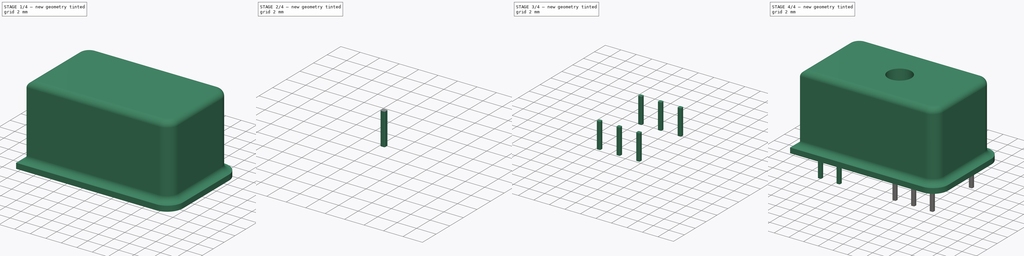
[diagram: build sequence overview — one tinted view per stage of 4, left to right]
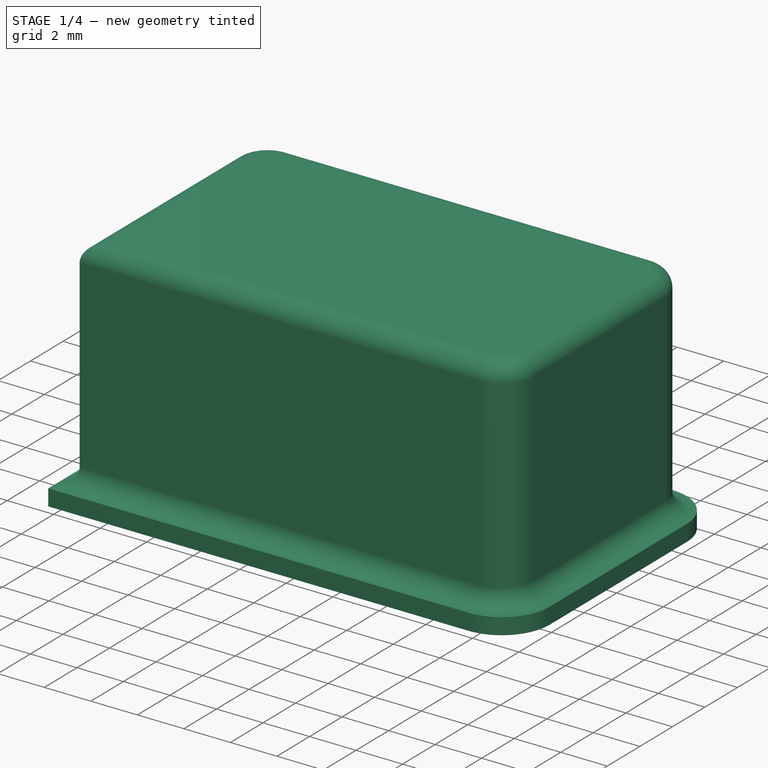
[diagram: stage 1 of 4 — iso view after this stage's code; geometry added in this stage tinted green]
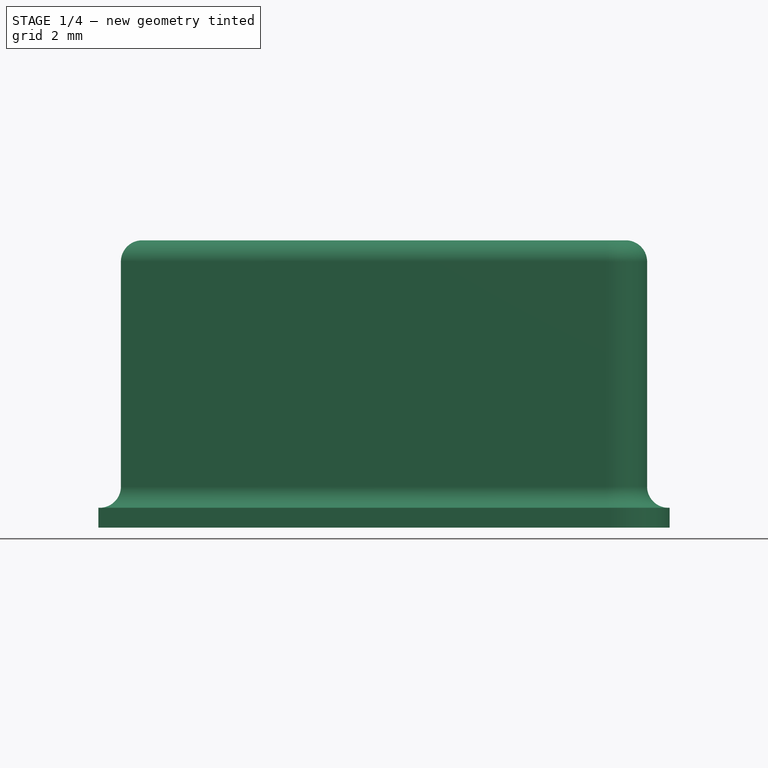
[diagram: stage 1 of 4 — front view after this stage's code; geometry added in this stage tinted green]
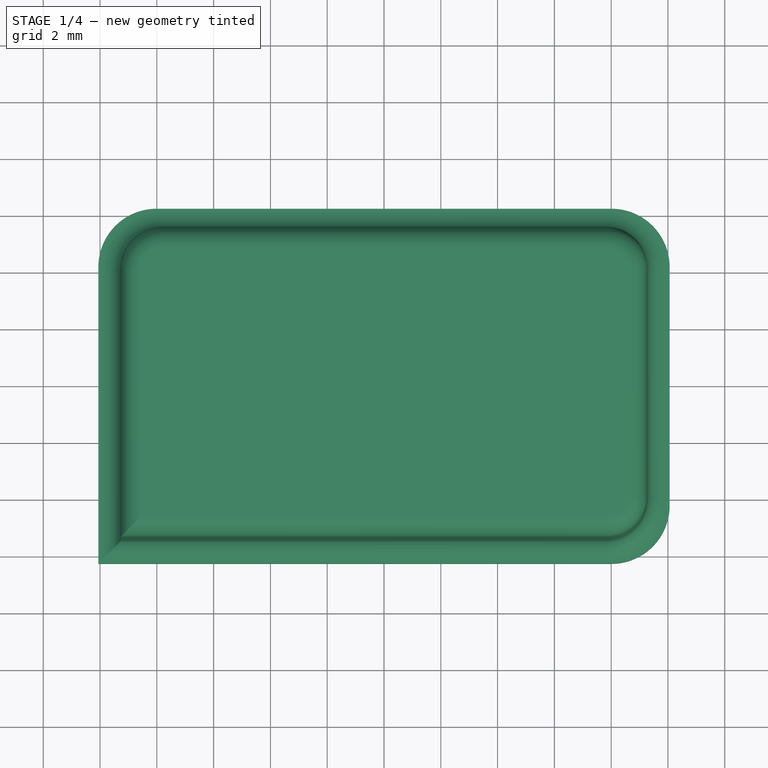
[diagram: stage 1 of 4 — top view after this stage's code; geometry added in this stage tinted green]
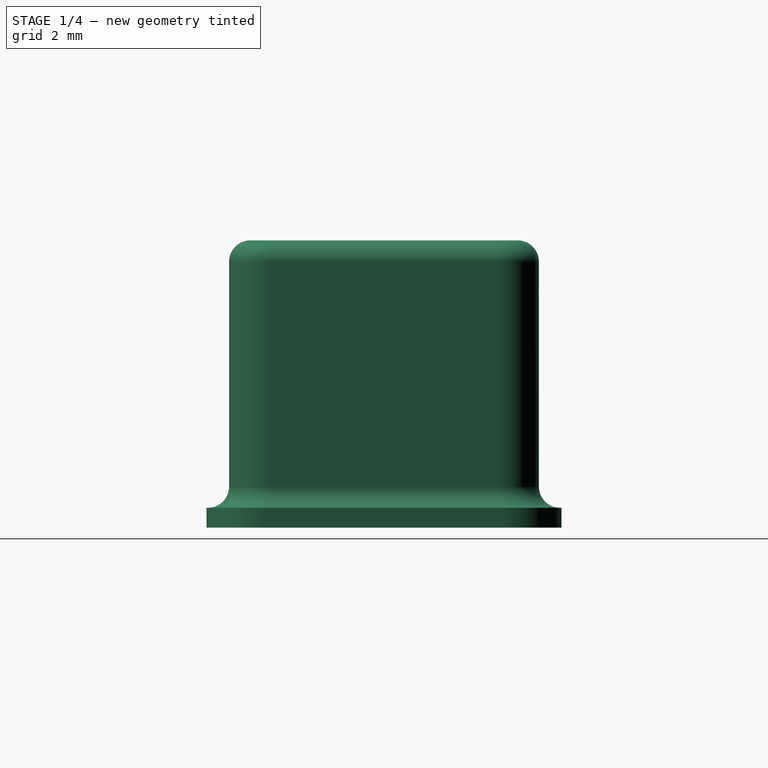
[diagram: stage 1 of 4 — right view after this stage's code; geometry added in this stage tinted green]
FCSTD DOCUMENT  (FreeCAD 0.20R29603 (Git))
Label: C12666MA
License: All rights reserved
LicenseURL: http://en.wikipedia.org/wiki/All_rights_reserved
objects: Part::FeaturePython×5, Sketcher::SketchObject×4, PartDesign::Pad×3, Part::MultiFuse×3, PartDesign::Body×2, PartDesign::Fillet×1, PartDesign::Pocket×1, PartDesign::ShapeBinder×1
note: 25 computed .brp shape members not serialized (recipe doc carries the construction recipe); baked Part::Feature solids carry a one-line shape summary decoded from their .brp

FEATURE [Sketcher::SketchObject] Sketch
  FullyConstrained = false
  MapMode = 5
  Support = -> [XY_Plane]
  sketch-geometry (9):
    g0: LineSegment StartX=-10.06 StartY=-6.25 StartZ=0 EndX=8.00679 EndY=-6.25 EndZ=0
    g1: LineSegment StartX=10.06 StartY=-4.19679 StartZ=0 EndX=10.06 EndY=4.19679 EndZ=0
    g2: LineSegment StartX=8.00679 StartY=6.25 StartZ=0 EndX=-8.00679 EndY=6.25 EndZ=0
    g3: LineSegment StartX=-10.06 StartY=4.19679 StartZ=0 EndX=-10.06 EndY=-6.25 EndZ=0
    g4: ArcOfCircle CenterX=-8.00679 CenterY=4.19679 CenterZ=0 NormalX=0 NormalY=0 NormalZ=1 AngleXU=0 Radius=2.05321 StartAngle=1.5708 EndAngle=3.14159
    g5: ArcOfCircle CenterX=8.00679 CenterY=4.19679 CenterZ=0 NormalX=0 NormalY=0 NormalZ=1 AngleXU=0 Radius=2.05321 StartAngle=2e-16 EndAngle=1.5708
    g6: ArcOfCircle CenterX=8.00679 CenterY=-4.19679 CenterZ=0 NormalX=0 NormalY=0 NormalZ=1 AngleXU=0 Radius=2.05321 StartAngle=4.71239 EndAngle=6.28319
    g7: GeomPoint X=-8.00679 Y=-6.25 Z=0
    g8: GeomPoint X=-10.06 Y=-4.19679 Z=0
  constraints (19):
    c: Coincident(g3,g0)
    c: Horizontal(g0)
    c: Vertical(g3)
    c: Tangent(g2,g4) = -1.5708
    c: Tangent(g3,g4) = -1.5708
    c: Tangent(g1,g5) = -1.5708
    c: Tangent(g2,g5) = -1.5708
    c: Tangent(g0,g6) = -1.5708
    c: Tangent(g1,g6) = -1.5708
    c: Equal(g4,g5)
    c: Equal(g5,g6)
    c: Horizontal(g2)
    c: Vertical(g1)
    c: PointOnObject(g7,g0)
    c: PointOnObject(g8,g3)
    c: DistanceX(g8,g1) = 20.12
    c: DistanceY(g7,g2) = 12.5
    c: Symmetric(g1,g8,g-2)
    c: Symmetric(g2,g7,g-1)
FEATURE [PartDesign::Pad] Pad
  Direction = (0,0,1)
  Length = 0.7
  Length2 = 10
  Profile = -> Sketch
  ReferenceAxis = -> Sketch [N_Axis]
  Type = 0
FEATURE [Sketcher::SketchObject] Sketch001
  FullyConstrained = false
  MapMode = 5
  Placement = pos=(0,0,0.7) rot=(0,0,1;0rad)
  Support = -> [Pad]
  sketch-geometry (9):
    g0: LineSegment StartX=-9.265 StartY=-5.455 StartZ=0 EndX=7.83023 EndY=-5.455 EndZ=0
    g1: LineSegment StartX=9.265 StartY=-4.02023 StartZ=0 EndX=9.265 EndY=4.02023 EndZ=0
    g2: LineSegment StartX=7.83023 StartY=5.455 StartZ=0 EndX=-7.83023 EndY=5.455 EndZ=0
    g3: LineSegment StartX=-9.265 StartY=4.02023 StartZ=0 EndX=-9.265 EndY=-5.455 EndZ=0
    g4: ArcOfCircle CenterX=-7.83023 CenterY=4.02023 CenterZ=0 NormalX=0 NormalY=0 NormalZ=1 AngleXU=0 Radius=1.43477 StartAngle=1.5708 EndAngle=3.14159
    g5: ArcOfCircle CenterX=7.83023 CenterY=4.02023 CenterZ=0 NormalX=0 NormalY=0 NormalZ=1 AngleXU=0 Radius=1.43477 StartAngle=0 EndAngle=1.5708
    g6: ArcOfCircle CenterX=7.83023 CenterY=-4.02023 CenterZ=0 NormalX=0 NormalY=0 NormalZ=1 AngleXU=0 Radius=1.43477 StartAngle=4.71239 EndAngle=6.28319
    g7: GeomPoint X=-7.83023 Y=-5.455 Z=0
    g8: GeomPoint X=-9.265 Y=-4.02023 Z=0
  constraints (19):
    c: Coincident(g3,g0)
    c: Horizontal(g0)
    c: Horizontal(g2)
    c: Vertical(g1)
    c: Vertical(g3)
    c: Tangent(g2,g4) = -1.5708
    c: Tangent(g3,g4) = -1.5708
    c: Tangent(g1,g5) = -1.5708
    c: Tangent(g2,g5) = -1.5708
    c: Tangent(g0,g6) = -1.5708
    c: Tangent(g1,g6) = -1.5708
    c: PointOnObject(g7,g0)
    c: PointOnObject(g8,g3)
    c: Equal(g4,g5)
    c: Equal(g5,g6)
    c: Symmetric(g8,g1,g-2)
    c: Symmetric(g2,g7,g-1)
    c: DistanceY(g7,g2) = 10.91
    c: DistanceX(g8,g1) = 18.53
FEATURE [PartDesign::Pad] Pad001
  BaseFeature = -> Pad
  Direction = (0,0,1)
  Length = 9.42
  Length2 = 10
  Profile = -> Sketch001
  ReferenceAxis = -> Sketch001 [N_Axis]
  Type = 0
FEATURE [PartDesign::Fillet] Fillet
  Base = -> Pad001 [Edge19,Edge20,Edge21,Edge22,Edge23,Edge24,Edge25,Edge42,Edge41,Edge39,Edge37,Edge35,Edge33,Edge31]
  BaseFeature = -> Pad001
  Radius = 0.75
  SupportTransform = false
  UseAllEdges = false
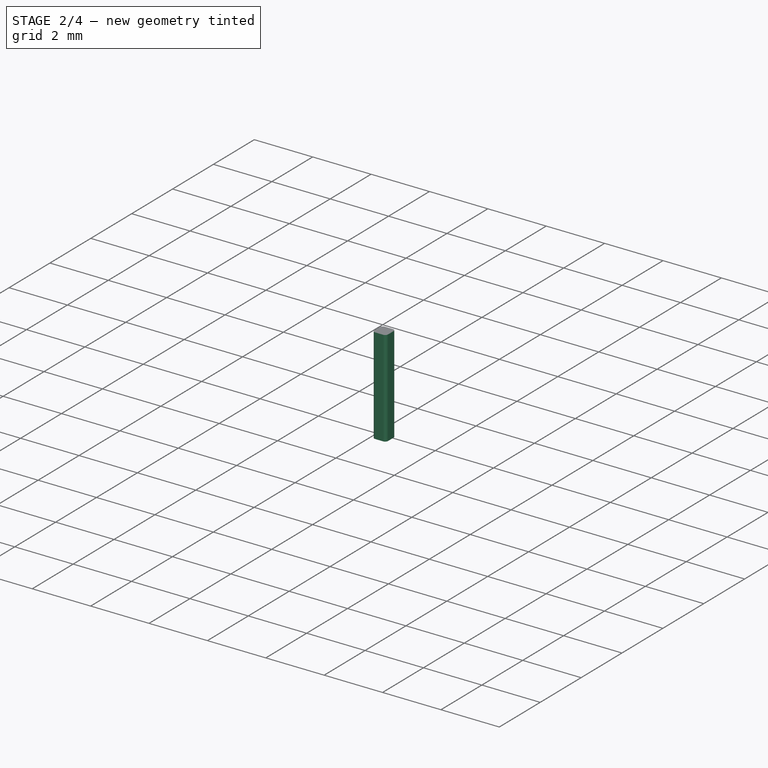
[diagram: stage 2 of 4 — iso view after this stage's code; geometry added in this stage tinted green]
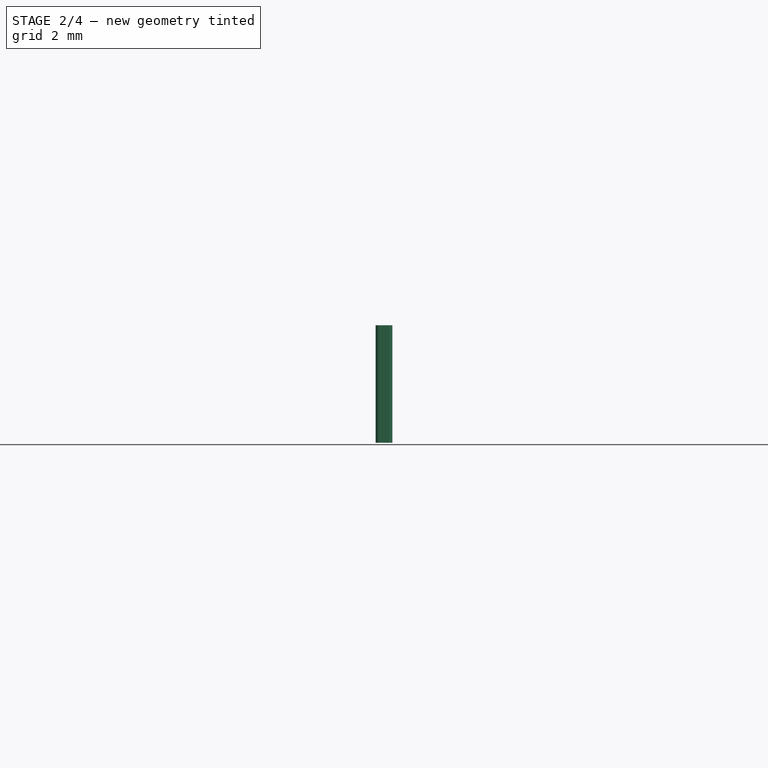
[diagram: stage 2 of 4 — front view after this stage's code; geometry added in this stage tinted green]
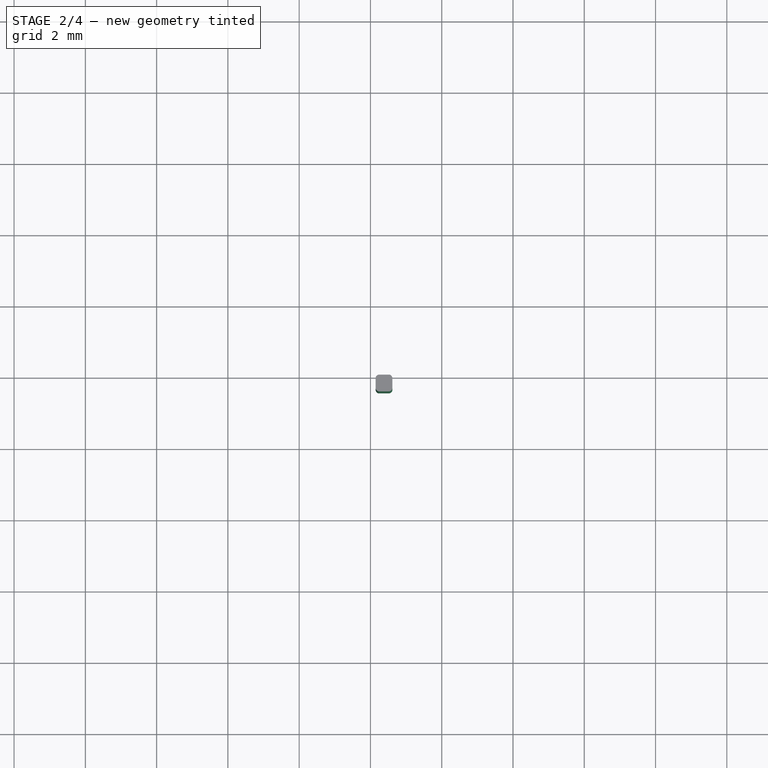
[diagram: stage 2 of 4 — top view after this stage's code; geometry added in this stage tinted green]
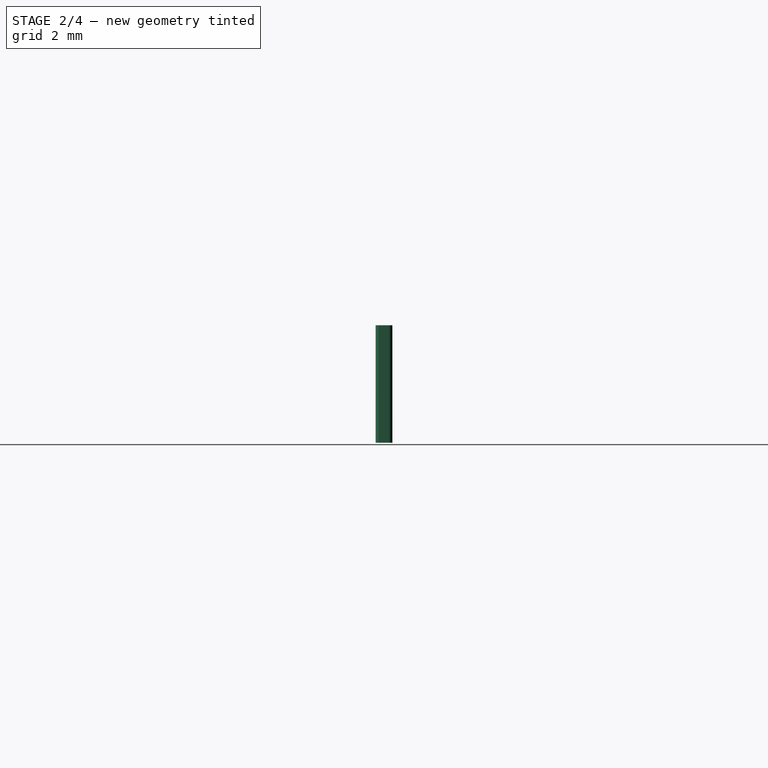
[diagram: stage 2 of 4 — right view after this stage's code; geometry added in this stage tinted green]
FEATURE [Sketcher::SketchObject] Sketch002
  FullyConstrained = true
  MapMode = 5
  Placement = pos=(0,0,10.12) rot=(0,0,1;0rad)
  Support = -> [Fillet]
  sketch-geometry (1):
    g0: Circle CenterX=0.5 CenterY=0 CenterZ=0 NormalX=0 NormalY=0 NormalZ=1 AngleXU=0 Radius=1.6
  constraints (3):
    c: PointOnObject(g0,g-1)
    c: Diameter(g0) = 3.2
    c: DistanceX(g-1,g0) = 0.5
FEATURE [PartDesign::Pocket] Pocket
  BaseFeature = -> Fillet
  Direction = (0,0,-1)
  Length = 2.5
  Length2 = 5
  Profile = -> Sketch002
  ReferenceAxis = -> Sketch002 [N_Axis]
  Type = 0
FEATURE [PartDesign::Body] Body
  Group = -> [Sketch,Pad,Sketch001,Pad001,Fillet,Sketch002,Pocket]
  Origin = -> Origin
  Tip = -> Pocket
FEATURE [PartDesign::ShapeBinder] ReferencePocket
  Support = -> [Pocket]
  TraceSupport = false
FEATURE [Sketcher::SketchObject] Sketch003
  FullyConstrained = true
  MapMode = 5
  Placement = pos=(0,0,0) rot=(1,0,0;3.14159rad)
  Support = -> [ReferencePocket]
  sketch-geometry (11):
    g0: LineSegment StartX=-7.755 StartY=3.575 StartZ=0 EndX=-7.485 EndY=3.575 EndZ=0
    g1: LineSegment StartX=-7.385 StartY=3.675 StartZ=0 EndX=-7.385 EndY=3.945 EndZ=0
    g2: LineSegment StartX=-7.485 StartY=4.045 StartZ=0 EndX=-7.755 EndY=4.045 EndZ=0
    g3: LineSegment StartX=-7.855 StartY=3.945 StartZ=0 EndX=-7.855 EndY=3.675 EndZ=0
    g4: ArcOfCircle CenterX=-7.755 CenterY=3.945 CenterZ=0 NormalX=0 NormalY=0 NormalZ=1 AngleXU=0 Radius=0.1 StartAngle=1.5708 EndAngle=3.14159
    g5: ArcOfCircle CenterX=-7.485 CenterY=3.945 CenterZ=0 NormalX=0 NormalY=0 NormalZ=1 AngleXU=0 Radius=0.1 StartAngle=-9e-16 EndAngle=1.5708
    g6: ArcOfCircle CenterX=-7.485 CenterY=3.675 CenterZ=0 NormalX=0 NormalY=0 NormalZ=1 AngleXU=0 Radius=0.1 StartAngle=4.71239 EndAngle=6.28319
    g7: ArcOfCircle CenterX=-7.755 CenterY=3.675 CenterZ=0 NormalX=0 NormalY=0 NormalZ=1 AngleXU=0 Radius=0.1 StartAngle=3.14159 EndAngle=4.71239
    g8: LineSegment StartX=-7.755 StartY=3.945 StartZ=0 EndX=-7.485 EndY=3.675 EndZ=0
    g9: LineSegment StartX=-7.485 StartY=3.945 StartZ=0 EndX=-7.755 EndY=3.675 EndZ=0
    g10: GeomPoint X=-7.62 Y=3.81 Z=0
  constraints (26):
    c: Horizontal(g0)
    c: Horizontal(g2)
    c: Vertical(g1)
    c: Vertical(g3)
    c: Tangent(g2,g4) = -1.5708
    c: Tangent(g3,g4) = -1.5708
    c: Tangent(g1,g5) = -1.5708
    c: Tangent(g2,g5) = -1.5708
    c: Tangent(g0,g6) = -1.5708
    c: Tangent(g1,g6) = -1.5708
    c: Tangent(g0,g7) = -1.5708
    c: Tangent(g3,g7) = -1.5708
    c: DistanceX(g3,g1) = 0.47
    c: DistanceY(g0,g2) = 0.47
    c: Equal(g4,g5)
    c: Equal(g5,g6)
    c: Equal(g6,g7)
    c: Coincident(g8,g4)
    c: Coincident(g8,g6)
    c: Coincident(g9,g5)
    c: Coincident(g9,g7)
    c: PointOnObject(g10,g9)
    c: PointOnObject(g10,g8)
    c: DistanceY(g-1,g10) = 3.81
    c: DistanceX(g10,g-1) = 7.62
    c: DistanceX(g5,g1) = 0.1
FEATURE [PartDesign::Pad] Pad002
  Direction = (0,0,-1)
  Length = 3.3
  Length2 = 10
  Profile = -> Sketch003
  ReferenceAxis = -> Sketch003 [N_Axis]
  Type = 0
FEATURE [PartDesign::Body] Body001
  Group = -> [ReferencePocket,Sketch003,Pad002]
  Origin = -> Origin001
  Tip = -> Pad002
FEATURE [Part::FeaturePython] Clone  label="Body002"  # Draft clone (typed FeaturePython)
  AttacherType = Attacher::AttachEngine3D
  Fuse = false
  Objects = -> [Body001]
  Placement = pos=(0,7.62,0) rot=(0,0,1;0rad)
  Scale = (1,1,1)
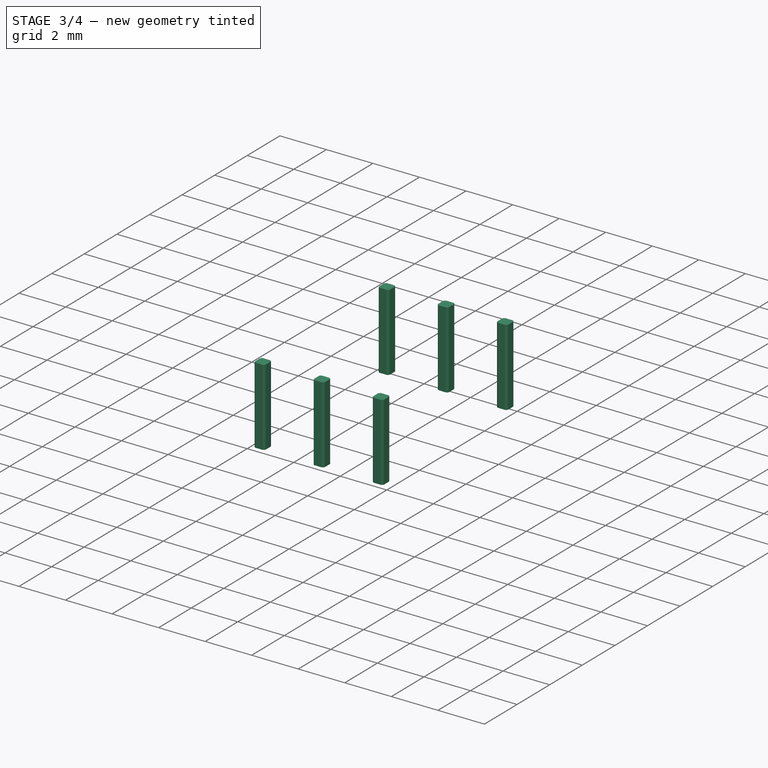
[diagram: stage 3 of 4 — iso view after this stage's code; geometry added in this stage tinted green]
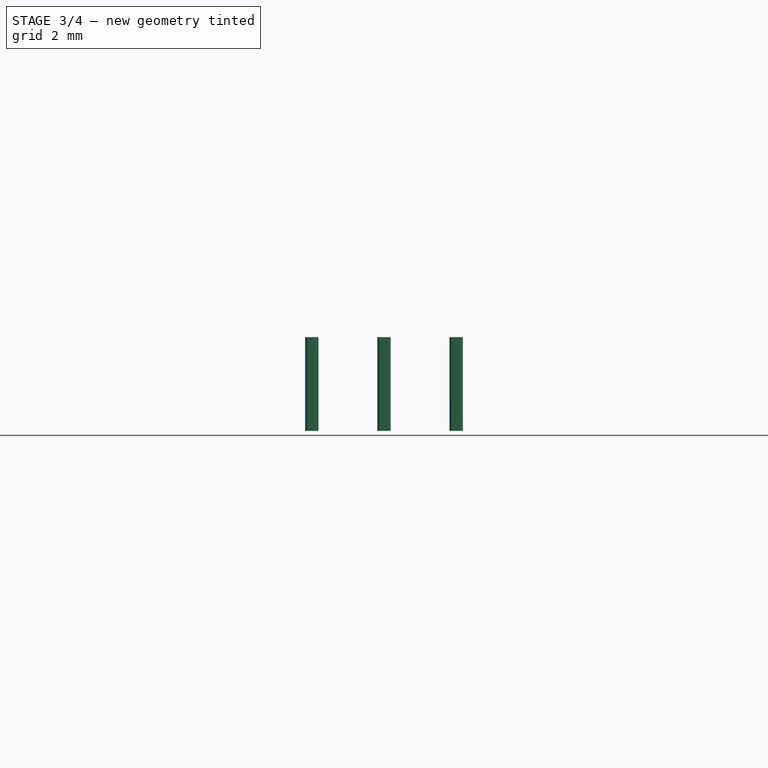
[diagram: stage 3 of 4 — front view after this stage's code; geometry added in this stage tinted green]
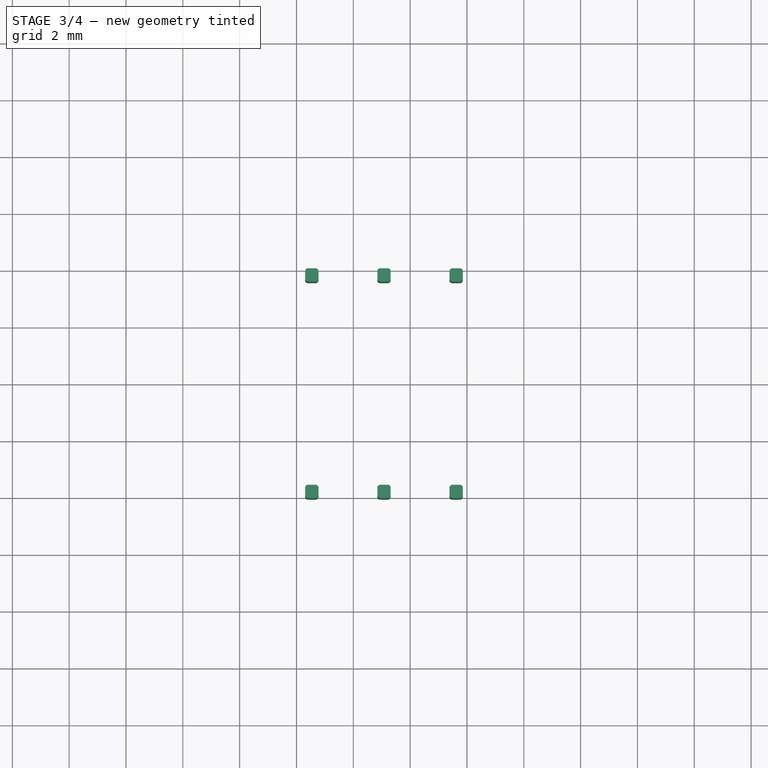
[diagram: stage 3 of 4 — top view after this stage's code; geometry added in this stage tinted green]
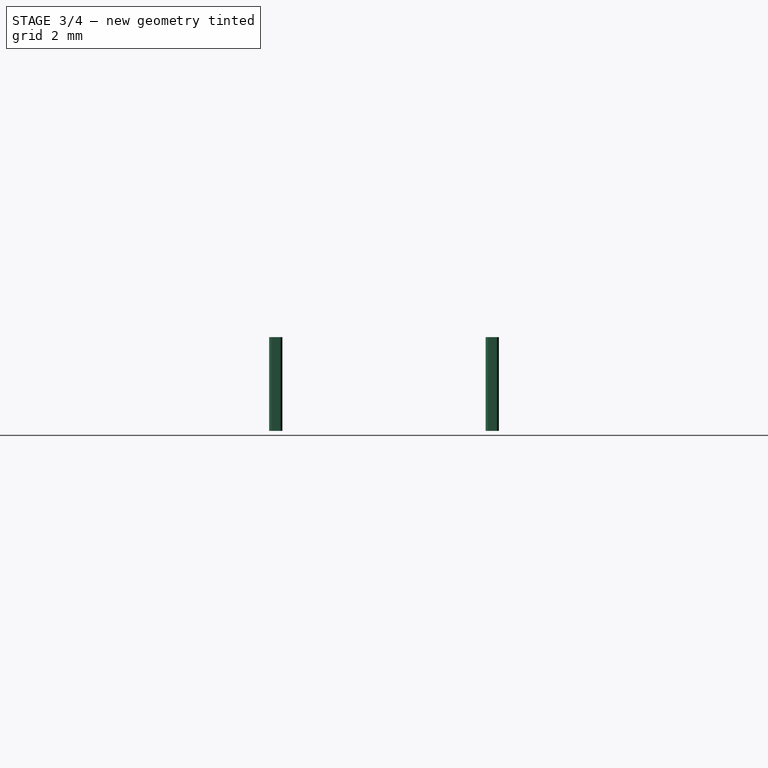
[diagram: stage 3 of 4 — right view after this stage's code; geometry added in this stage tinted green]
FEATURE [Part::MultiFuse] Fusion
  Shapes = -> [Clone,Body001]
FEATURE [Part::FeaturePython] Clone002  label="Fusion002"  # Draft clone (typed FeaturePython)
  AttacherType = Attacher::AttachEngine3D
  Fuse = false
  Objects = -> [Fusion]
  Placement = pos=(10.16,0,0) rot=(0,0,1;0rad)
  Scale = (1,1,1)
FEATURE [Part::FeaturePython] Clone003  label="Fusion003"  # Draft clone (typed FeaturePython)
  AttacherType = Attacher::AttachEngine3D
  Fuse = false
  Objects = -> [Fusion]
  Placement = pos=(12.7,0,0) rot=(0,0,1;0rad)
  Scale = (1,1,1)
FEATURE [Part::FeaturePython] Clone004  label="Fusion004"  # Draft clone (typed FeaturePython)
  AttacherType = Attacher::AttachEngine3D
  Fuse = false
  Objects = -> [Fusion]
  Placement = pos=(15.24,0,0) rot=(0,0,1;0rad)
  Scale = (1,1,1)
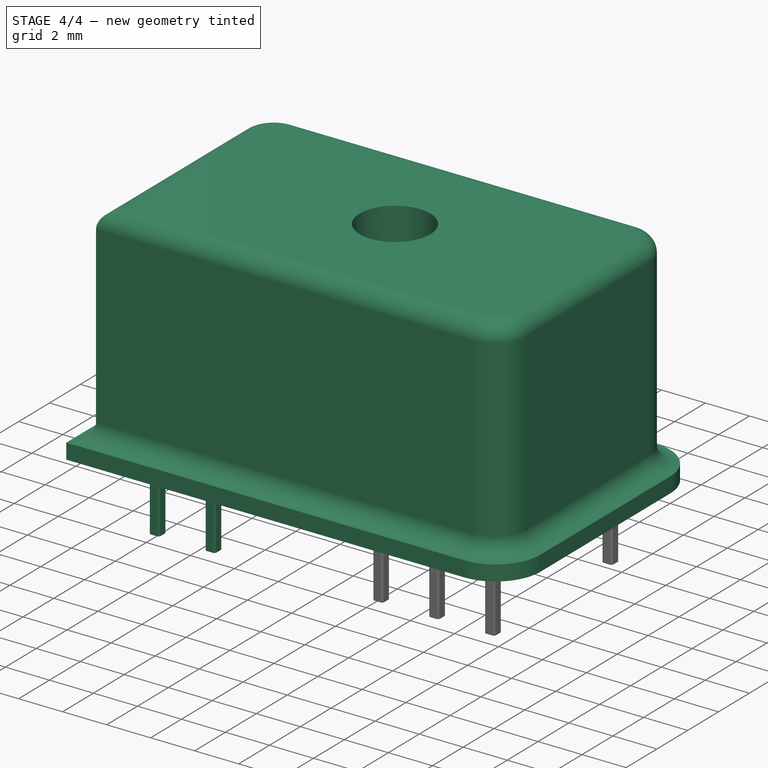
[diagram: stage 4 of 4 — iso view after this stage's code; geometry added in this stage tinted green]
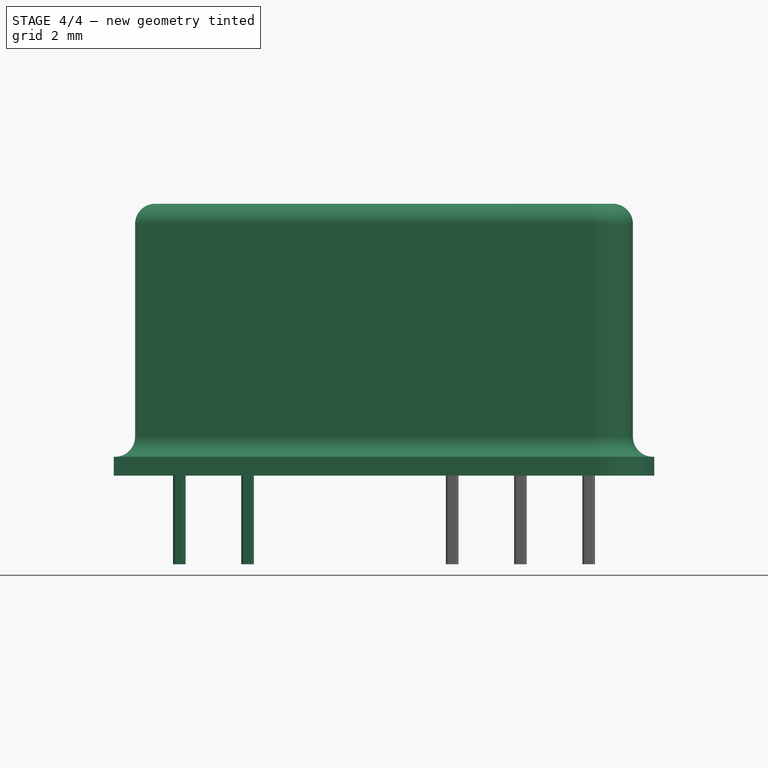
[diagram: stage 4 of 4 — front view after this stage's code; geometry added in this stage tinted green]
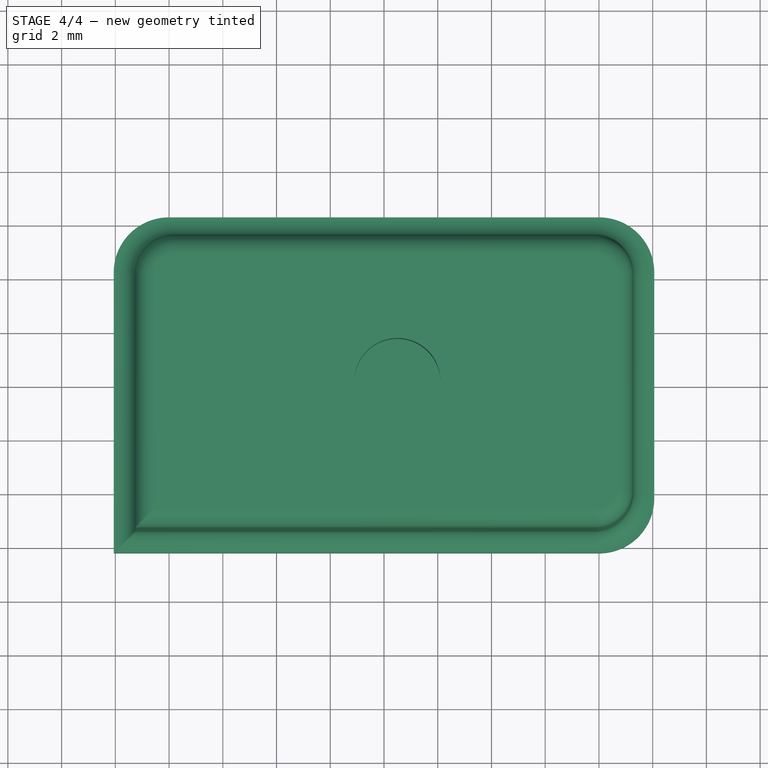
[diagram: stage 4 of 4 — top view after this stage's code; geometry added in this stage tinted green]
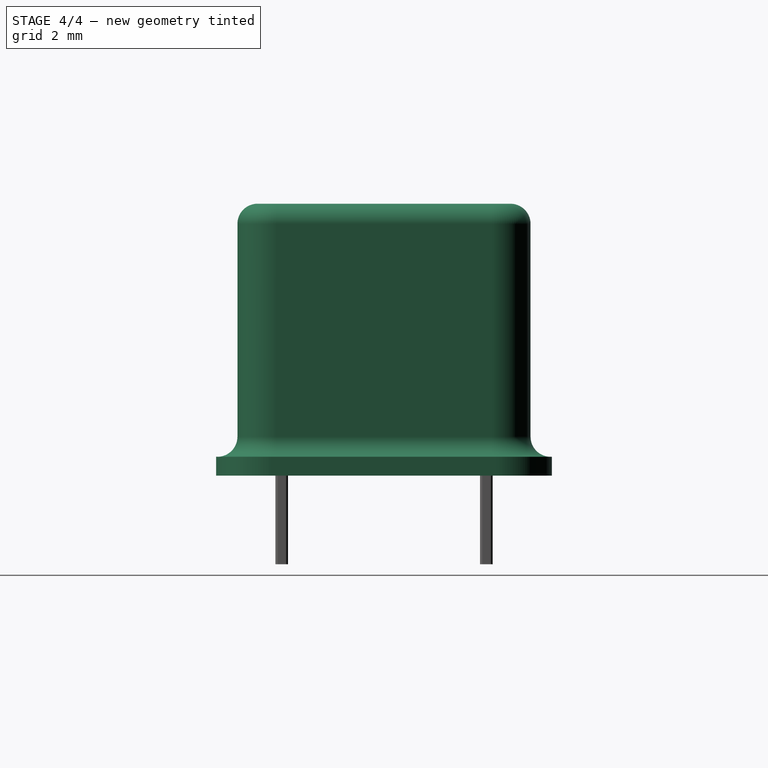
[diagram: stage 4 of 4 — right view after this stage's code; geometry added in this stage tinted green]
FEATURE [Part::FeaturePython] Clone001  label="Fusion001"  # Draft clone (typed FeaturePython)
  AttacherType = Attacher::AttachEngine3D
  Fuse = false
  Objects = -> [Fusion]
  Placement = pos=(2.54,0,0) rot=(0,0,1;0rad)
  Scale = (1,1,1)
FEATURE [Part::MultiFuse] Fusion001  label="Fusion005"
  Shapes = -> [Fusion,Clone001,Clone002,Clone003,Clone004]
FEATURE [Part::MultiFuse] Fusion002  label="Fusion006"
  Shapes = -> [Body,Fusion001]
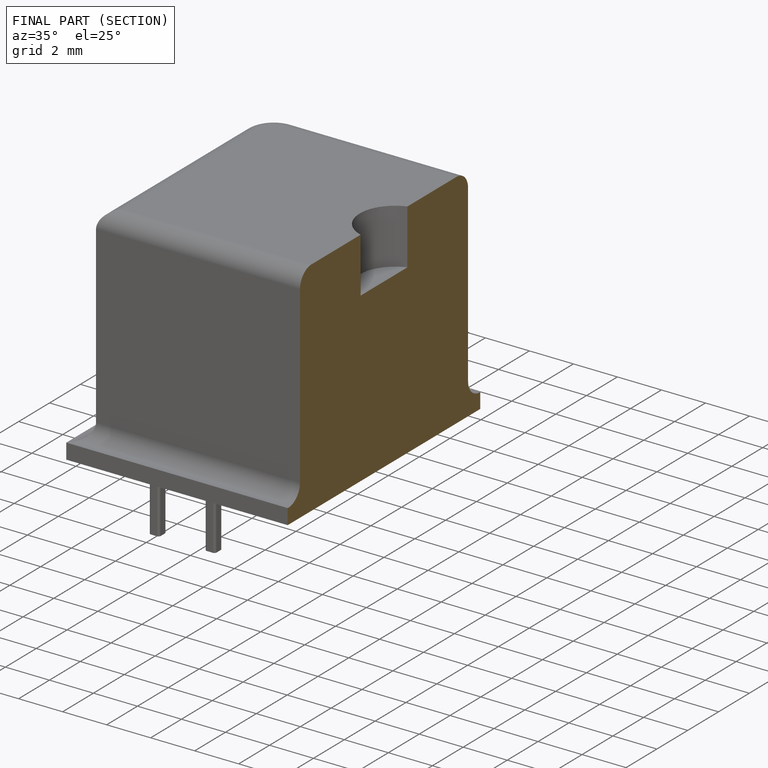
[diagram: finished part — half-section view (interior)]
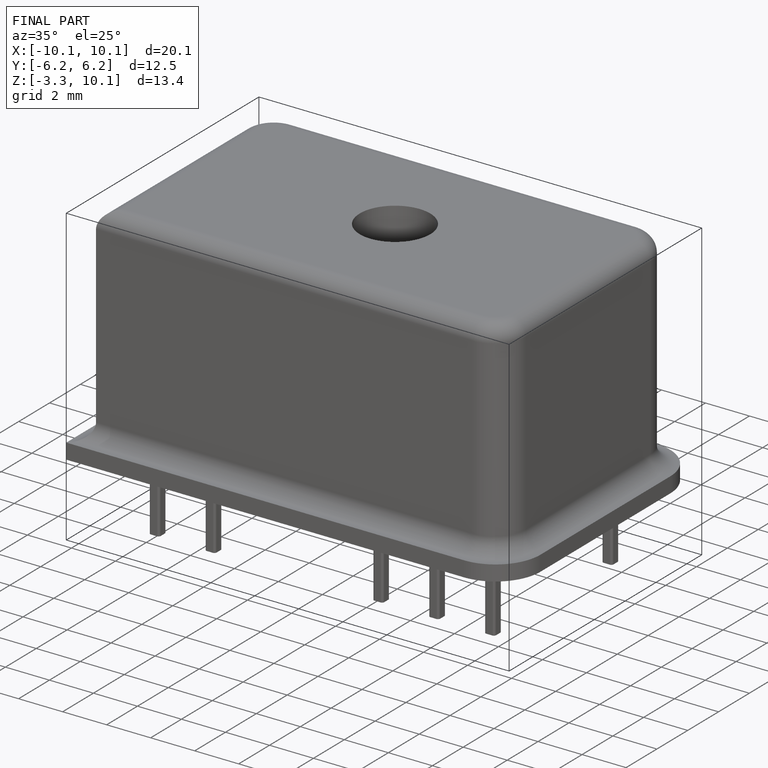
[diagram: finished part — iso view with bounding-box wireframe]
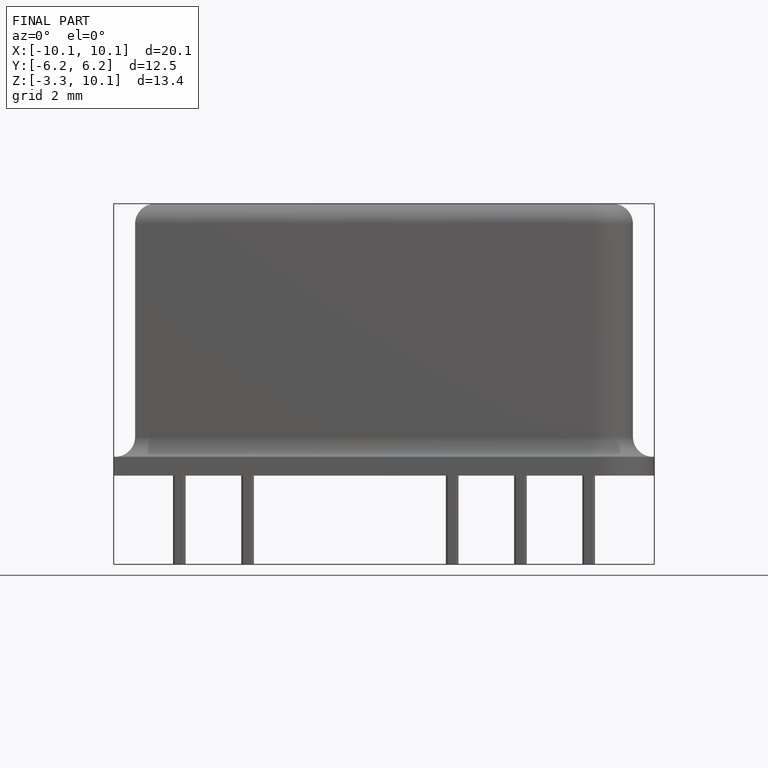
[diagram: finished part — front view with bounding-box wireframe]
